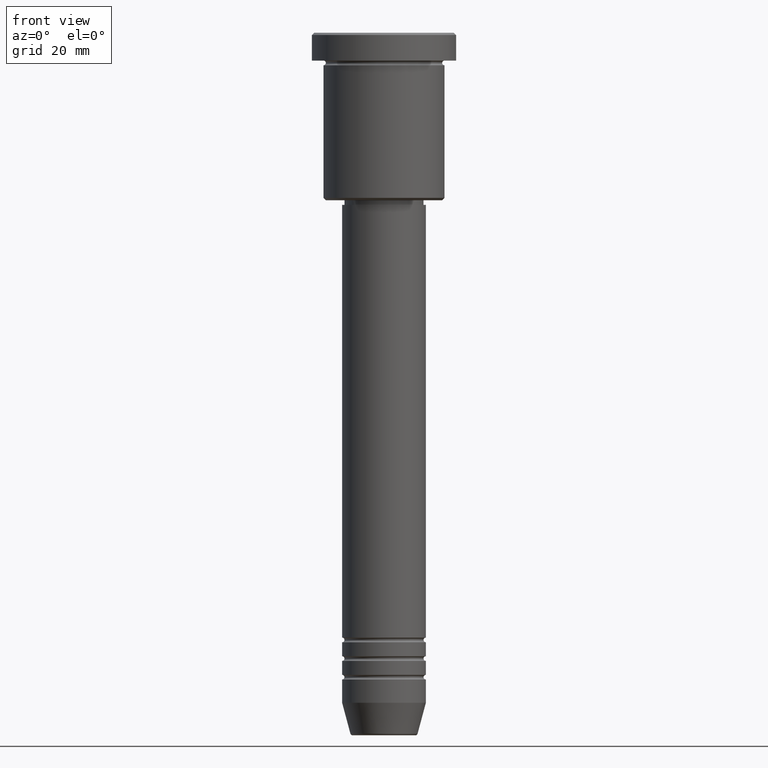
[diagram: clean part render]
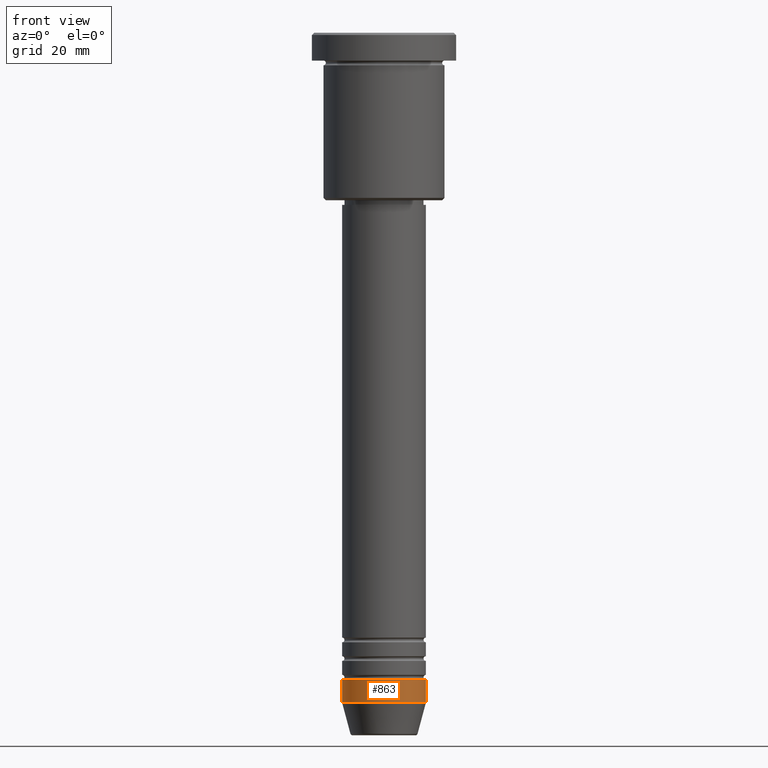
[diagram: same view with one face highlighted and labeled with its STEP entity id]
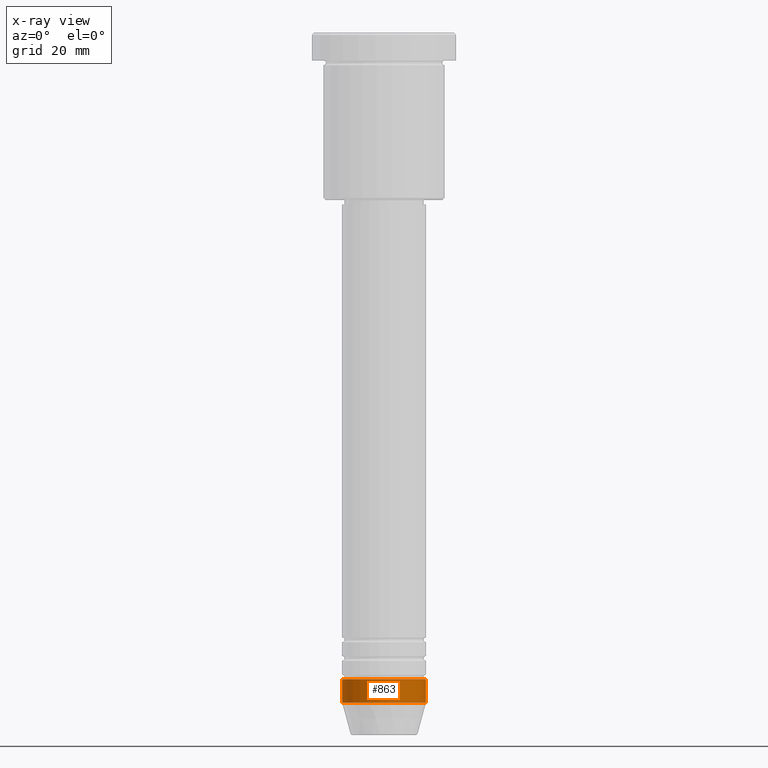
[diagram: x-ray of the same camera — body ghosted, the highlighted face saturated]
A machine part, front view. The second image highlights one B-rep face of the part: STEP entity #863.
The next image is the same camera in x-ray: the body ghosted, the highlighted face saturated — about 0% of this face is hidden behind the body in this view.
In plain terms, the highlighted cylindrical surface (partial cylindrical patch) has radius 9 mm, axis along (-0, -0, 1).
Its self-contained STEP definition (entity closure, byte-faithful):
#6 = EDGE_LOOP ( 'NONE', ( #304, #539, #774, #719 ) ) ;
#7 = CARTESIAN_POINT ( 'NONE',  ( -9.000000000000000000, 1.102182119232617714E-15, -144.0000000000000284 ) ) ;
#64 = CIRCLE ( 'NONE', #1063, 9.000000000000000000 ) ;
#78 = DIRECTION ( 'NONE',  ( 1.000000000000000000, 0.000000000000000000, 0.000000000000000000 ) ) ;
#107 = VERTEX_POINT ( 'NONE', #857 ) ;
#136 = VERTEX_POINT ( 'NONE', #900 ) ;
#167 = EDGE_CURVE ( 'NONE', #858, #107, #1147, .T. ) ;
#170 = LINE ( 'NONE', #354, #921 ) ;
#192 = DIRECTION ( 'NONE',  ( 1.000000000000000000, 0.000000000000000000, 0.000000000000000000 ) ) ;
#212 = CYLINDRICAL_SURFACE ( 'NONE', #216, 9.000000000000000000 ) ;
#216 = AXIS2_PLACEMENT_3D ( 'NONE', #372, #288, #192 ) ;
#223 = EDGE_CURVE ( 'NONE', #858, #675, #170, .T. ) ;
#260 = DIRECTION ( 'NONE',  ( 1.000000000000000000, 0.000000000000000000, 0.000000000000000000 ) ) ;
#288 = DIRECTION ( 'NONE',  ( -0.000000000000000000, -0.000000000000000000, 1.000000000000000000 ) ) ;
#304 = ORIENTED_EDGE ( 'NONE', *, *, #223, .F. ) ;
#306 = FACE_OUTER_BOUND ( 'NONE', #6, .T. ) ;
#354 = CARTESIAN_POINT ( 'NONE',  ( -9.000000000000000000, 1.102182119232617714E-15, 0.000000000000000000 ) ) ;
#372 = CARTESIAN_POINT ( 'NONE',  ( 0.000000000000000000, 0.000000000000000000, 0.000000000000000000 ) ) ;
#423 = DIRECTION ( 'NONE',  ( -0.000000000000000000, -0.000000000000000000, 1.000000000000000000 ) ) ;
#539 = ORIENTED_EDGE ( 'NONE', *, *, #167, .T. ) ;
#541 = CARTESIAN_POINT ( 'NONE',  ( 0.000000000000000000, 0.000000000000000000, -139.0000000000000000 ) ) ;
#634 = LINE ( 'NONE', #814, #1098 ) ;
#675 = VERTEX_POINT ( 'NONE', #1183 ) ;
#719 = ORIENTED_EDGE ( 'NONE', *, *, #1105, .F. ) ;
#774 = ORIENTED_EDGE ( 'NONE', *, *, #1092, .T. ) ;
#814 = CARTESIAN_POINT ( 'NONE',  ( 9.000000000000000000, 0.000000000000000000, 0.000000000000000000 ) ) ;
#857 = CARTESIAN_POINT ( 'NONE',  ( 9.000000000000000000, 0.000000000000000000, -144.0000000000000284 ) ) ;
#858 = VERTEX_POINT ( 'NONE', #7 ) ;
#863 = ADVANCED_FACE ( 'NONE', ( #306 ), #212, .T. ) ;
#900 = CARTESIAN_POINT ( 'NONE',  ( 9.000000000000000000, 0.000000000000000000, -139.0000000000000000 ) ) ;
#921 = VECTOR ( 'NONE', #423, 1000.000000000000000 ) ;
#972 = CARTESIAN_POINT ( 'NONE',  ( 0.000000000000000000, 0.000000000000000000, -144.0000000000000284 ) ) ;
#1036 = DIRECTION ( 'NONE',  ( -0.000000000000000000, -0.000000000000000000, 1.000000000000000000 ) ) ;
#1063 = AXIS2_PLACEMENT_3D ( 'NONE', #541, #1173, #78 ) ;
#1092 = EDGE_CURVE ( 'NONE', #107, #136, #634, .T. ) ;
#1098 = VECTOR ( 'NONE', #1160, 1000.000000000000000 ) ;
#1105 = EDGE_CURVE ( 'NONE', #675, #136, #64, .T. ) ;
#1147 = CIRCLE ( 'NONE', #1165, 9.000000000000000000 ) ;
#1160 = DIRECTION ( 'NONE',  ( -0.000000000000000000, -0.000000000000000000, 1.000000000000000000 ) ) ;
#1165 = AXIS2_PLACEMENT_3D ( 'NONE', #972, #1036, #260 ) ;
#1173 = DIRECTION ( 'NONE',  ( -0.000000000000000000, -0.000000000000000000, 1.000000000000000000 ) ) ;
#1183 = CARTESIAN_POINT ( 'NONE',  ( -9.000000000000000000, 1.102182119232617714E-15, -139.0000000000000000 ) ) ;